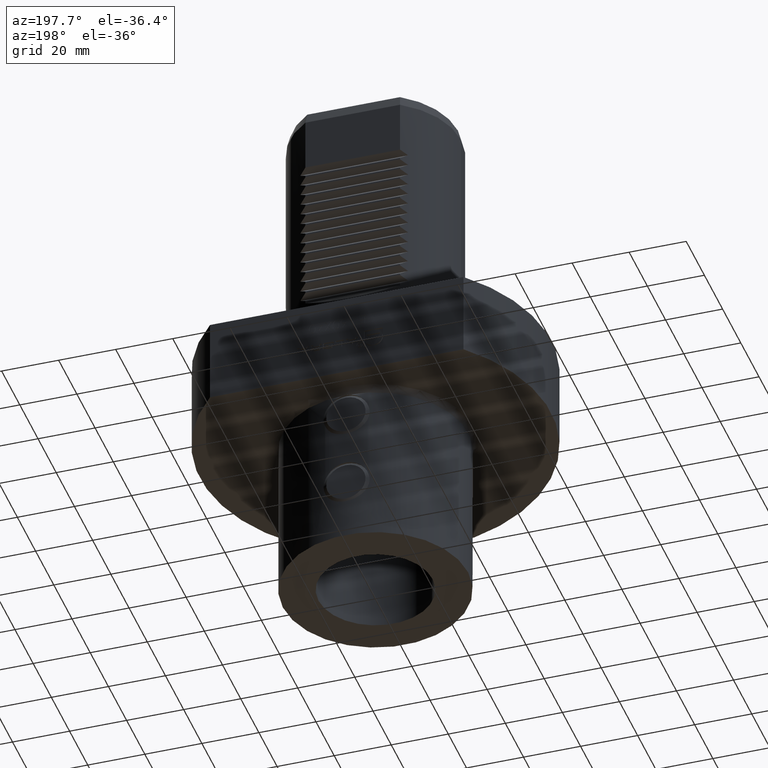
[diagram: clean part render]
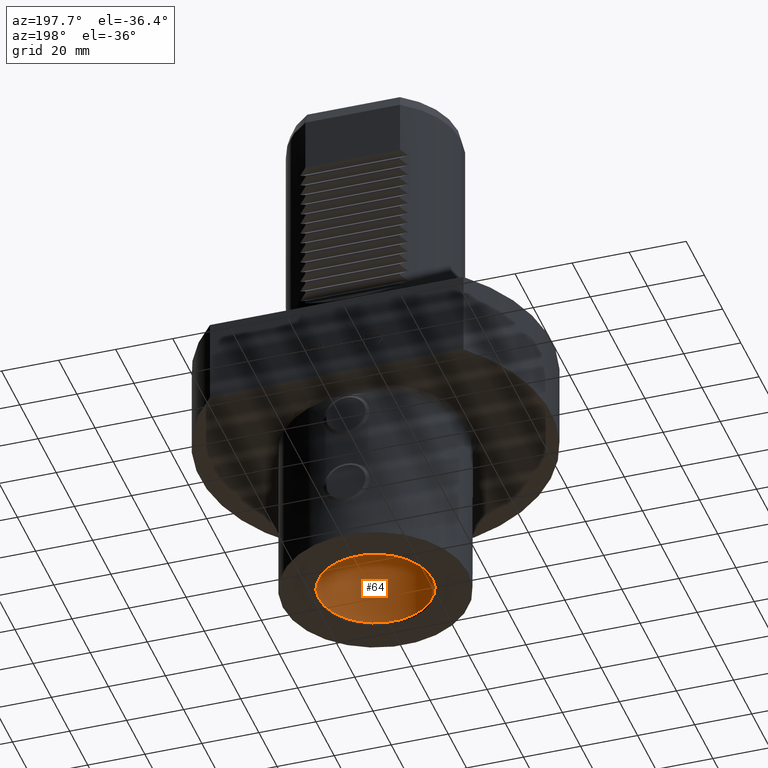
[diagram: same view with one face highlighted and labeled with its STEP entity id]
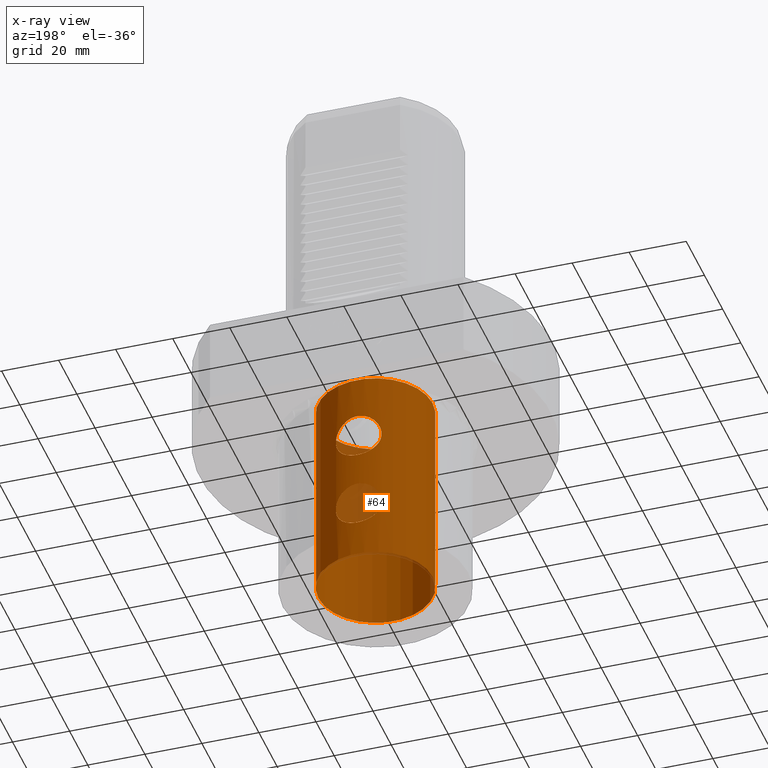
[diagram: x-ray of the same camera — body ghosted, the highlighted face saturated]
A machine part, auxiliary view. The second image highlights one B-rep face of the part: STEP entity #64.
The next image is the same camera in x-ray: the body ghosted, the highlighted face saturated — about 8% of this face is hidden behind the body in this view.
In plain terms, the highlighted cylindrical surface (bore or boss wall) has radius 20 mm, axis along (-0, -0, -1).
Its self-contained STEP definition (entity closure, byte-faithful):
#64 = ADVANCED_FACE ( 'Defeature completata1_2', ( #9222, #9570, #12292, #13567 ), #11707, .F. ) ;
#212 = CARTESIAN_POINT ( 'NONE',  ( -7.599342076785543298, 18.49999999999987210, -37.50000000000060396 ) ) ;
#214 = CARTESIAN_POINT ( 'NONE',  ( 7.966589335819543649, 18.34499655088329817, -40.84630643417819584 ) ) ;
#293 = B_SPLINE_CURVE_WITH_KNOTS ( 'NONE', 3,
 ( #13815, #13667, #5057, #3844, #5129, #13744, #6962, #3931, #4080, #1730, #1585, #3770, #9396, #10391, #2784, #7101, #8180, #593, #6044, #13527, #12382, #11369, #664, #2643, #11298, #12601, #11515, #5905, #9241, #4849, #10318, #4007, #11445, #4979, #13590, #9318, #10240, #8325 ),
 .UNSPECIFIED., .F., .F.,
 ( 4, 2, 2, 2, 2, 2, 2, 2, 2, 2, 2, 2, 2, 2, 2, 2, 2, 2, 4 ),
 ( 0.02781326423212629462, 0.02907499339717403361, 0.03033672256222176913, 0.03159845172726950813, 0.03286018089231724365, 0.03412191005736498611, 0.03538363922241272164, 0.03664536838746046410, 0.03727623296998433533, 0.03790709755250820656, 0.03916882671755594902, 0.03979969130007982026, 0.04043055588260369149, 0.04169228504765144783, 0.04295401421269920417, 0.04421574337774696051, 0.04547747254279471685, 0.04673920170784248013, 0.04800093087289023647 ),
 .UNSPECIFIED. ) ;
#376 = CARTESIAN_POINT ( 'NONE',  ( -0.8455287712535611844, 19.98645781266206001, -60.03368290066043755 ) ) ;
#402 = CARTESIAN_POINT ( 'NONE',  ( 8.000060904185183119, 18.33027619905803363, -68.42143082866641635 ) ) ;
#413 = CARTESIAN_POINT ( 'NONE',  ( 7.308660141340996397, 18.61786779280793880, -36.72012955318121641 ) ) ;
#473 = VERTEX_POINT ( 'NONE', #1531 ) ;
#496 = CARTESIAN_POINT ( 'NONE',  ( -7.830781149044367062, 18.40337564616790189, -69.69052502389649817 ) ) ;
#505 = CARTESIAN_POINT ( 'NONE',  ( 6.706515260206940887, 18.84380720317530233, -63.61891943540391736 ) ) ;
#553 = CARTESIAN_POINT ( 'NONE',  ( 6.927842858541079174, 18.76290242844807921, -35.97768020454572735 ) ) ;
#593 = CARTESIAN_POINT ( 'NONE',  ( 0.4234838864292458371, 19.99663719564863129, -75.99160422134200132 ) ) ;
#664 = CARTESIAN_POINT ( 'NONE',  ( -1.674693833856908176, 19.93083451569067321, -75.82561598714735851 ) ) ;
#683 = CARTESIAN_POINT ( 'NONE',  ( -19.99999999999996803, -2.081899558550495941E-15, -16.99999999999998934 ) ) ;
#687 = CARTESIAN_POINT ( 'NONE',  ( 2.885958797515987051, 19.79472282150234008, -47.47298082488358517 ) ) ;
#768 = EDGE_CURVE ( 'NONE', #9209, #5976, #293, .T. ) ;
#844 = CARTESIAN_POINT ( 'NONE',  ( 2.092651664156056412, 19.89423581778325811, -47.73272329794248492 ) ) ;
#891 = ORIENTED_EDGE ( 'NONE', *, *, #12389, .T. ) ;
#1071 = CARTESIAN_POINT ( 'NONE',  ( -0.8455287712535398681, 19.98645781266206356, -32.03368290066043045 ) ) ;
#1246 = CARTESIAN_POINT ( 'NONE',  ( -7.599342076785534417, 18.49999999999987566, -42.49999999999943867 ) ) ;
#1269 = CARTESIAN_POINT ( 'NONE',  ( 7.730668541688781481, 18.44605433888987278, -42.10080210778536980 ) ) ;
#1330 = CARTESIAN_POINT ( 'NONE',  ( -2.891342704421704379, 19.79399012458976159, -32.52894511531953725 ) ) ;
#1396 = CARTESIAN_POINT ( 'NONE',  ( 7.722701494737282957, 18.44892503843859899, -65.90127268743822242 ) ) ;
#1471 = CARTESIAN_POINT ( 'NONE',  ( 7.966609510225644009, 18.34498681044473045, -67.15433941143618313 ) ) ;
#1529 = CARTESIAN_POINT ( 'NONE',  ( 7.865267236606181100, 18.38855413940204286, -66.52247723312430594 ) ) ;
#1531 = CARTESIAN_POINT ( 'NONE',  ( -20.00000000000000000, -1.089935651241141083E-14, -88.99999999999994316 ) ) ;
#1554 = EDGE_LOOP ( 'NONE', ( #11096, #9255, #2681, #891 ) ) ;
#1585 = CARTESIAN_POINT ( 'NONE',  ( 4.021921454633568871, 19.59511957931782788, -74.92824598307532824 ) ) ;
#1673 = CARTESIAN_POINT ( 'NONE',  ( 6.922918001480995898, 18.76473540783335281, -44.03100833752522902 ) ) ;
#1705 = CARTESIAN_POINT ( 'NONE',  ( 2.088120733436144683, 19.89476197068369956, -60.26591327887771854 ) ) ;
#1730 = CARTESIAN_POINT ( 'NONE',  ( 4.375001982343807327, 19.51863969809767596, -74.71042554456484197 ) ) ;
#1766 = CARTESIAN_POINT ( 'NONE',  ( -7.599342076785557509, 18.49999999999986855, -65.50000000000062528 ) ) ;
#1817 = CARTESIAN_POINT ( 'NONE',  ( -1.674693833856901737, 19.93083451569066966, -47.82561598714732298 ) ) ;
#1864 = B_SPLINE_CURVE_WITH_KNOTS ( 'NONE', 3,
 ( #212, #8855, #13194, #4457, #13267, #8787, #3459, #7785, #1330, #9996, #10789, #1071, #9719, #4333, #2193, #6503, #10854, #10271, #13550, #13482, #5791, #5996, #5860, #6919, #10124, #11327, #553, #413, #4733, #8137 ),
 .UNSPECIFIED., .F., .F.,
 ( 4, 2, 2, 2, 2, 2, 2, 2, 2, 2, 2, 2, 2, 2, 4 ),
 ( 0.002537578306763581086, 0.005062881585775599880, 0.007588184864787618673, 0.008850836504293623300, 0.01011348814379962879, 0.01137613978330563255, 0.01263879142281163631, 0.01390144306231764007, 0.01516409470182364730, 0.01642674634132965106, 0.01768939798083565829, 0.01895204962034166205, 0.02021470125984766580, 0.02147735289935366956, 0.02274000453885967679 ),
 .UNSPECIFIED. ) ;
#1895 = CARTESIAN_POINT ( 'NONE',  ( 6.704784728978085973, 18.84442034812346733, -44.38368250909856982 ) ) ;
#1935 = ORIENTED_EDGE ( 'NONE', *, *, #7566, .T. ) ;
#2101 = CARTESIAN_POINT ( 'NONE',  ( -7.303888717421650689, 18.61973756010097247, -43.29029720516334834 ) ) ;
#2115 = CARTESIAN_POINT ( 'NONE',  ( -7.599342076785561950, 18.49999999999986855, -70.49999999999940314 ) ) ;
#2193 = CARTESIAN_POINT ( 'NONE',  ( 0.8469979077088417574, 19.98641802183229643, -32.03378055959601767 ) ) ;
#2557 = CARTESIAN_POINT ( 'NONE',  ( 4.374730231640882927, 19.51873331671741596, -61.28925587004397357 ) ) ;
#2558 = CARTESIAN_POINT ( 'NONE',  ( -7.549516567451070786E-15, -2.081899558550495941E-15, -17.00000000000000000 ) ) ;
#2582 = ORIENTED_EDGE ( 'NONE', *, *, #5178, .T. ) ;
#2616 = CARTESIAN_POINT ( 'NONE',  ( -7.731096981062929530, 18.44587834659998293, -70.09949976484013234 ) ) ;
#2624 = CARTESIAN_POINT ( 'NONE',  ( -0.4265789085652267332, 19.99991019521293012, -60.00022451199390616 ) ) ;
#2643 = CARTESIAN_POINT ( 'NONE',  ( -2.086450251871963868, 19.89194533662981001, -75.72603328765275421 ) ) ;
#2681 = ORIENTED_EDGE ( 'NONE', *, *, #8657, .T. ) ;
#2695 = CARTESIAN_POINT ( 'NONE',  ( 6.927842858541070292, 18.76290242844808276, -63.97768020454574867 ) ) ;
#2761 = CARTESIAN_POINT ( 'NONE',  ( 7.599342076785521094, 18.49999999999986144, -65.50000000000065370 ) ) ;
#2784 = CARTESIAN_POINT ( 'NONE',  ( 1.685782331100270426, 19.93321995885290576, -75.83179734090437307 ) ) ;
#2869 = CARTESIAN_POINT ( 'NONE',  ( 1.059335344956904290, 19.97302151968722939, -47.93237269303053694 ) ) ;
#2946 = CARTESIAN_POINT ( 'NONE',  ( -2.886404274292673211, 19.79469203081248807, -47.47290634939857057 ) ) ;
#3099 = CARTESIAN_POINT ( 'NONE',  ( -4.014486950288767453, 19.59656009714886693, -61.06773811472626790 ) ) ;
#3127 = DIRECTION ( 'NONE',  ( -1.000000000000000000, 0.000000000000000000, 5.204170427930431144E-16 ) ) ;
#3164 = AXIS2_PLACEMENT_3D ( 'NONE', #4585, #8913, #3949 ) ;
#3300 = CARTESIAN_POINT ( 'NONE',  ( -5.945785817345679902, 19.09819883398955298, -45.36838399453846193 ) ) ;
#3459 = CARTESIAN_POINT ( 'NONE',  ( -4.014486950288746137, 19.59656009714886693, -33.06773811472625368 ) ) ;
#3477 = CARTESIAN_POINT ( 'NONE',  ( -7.599342076785543298, 18.49999999999987210, -37.50000000000060396 ) ) ;
#3611 = AXIS2_PLACEMENT_3D ( 'NONE', #6671, #4220, #3127 ) ;
#3683 = CARTESIAN_POINT ( 'NONE',  ( -7.599342076785561950, 18.49999999999986855, -70.49999999999940314 ) ) ;
#3770 = CARTESIAN_POINT ( 'NONE',  ( 3.274248538352266813, 19.73382527601035008, -75.31134331695206185 ) ) ;
#3844 = CARTESIAN_POINT ( 'NONE',  ( 6.922918001481018990, 18.76473540783333505, -72.03100833752517929 ) ) ;
#3869 = CARTESIAN_POINT ( 'NONE',  ( 4.021921454633555548, 19.59511957931784210, -46.92824598307536377 ) ) ;
#3931 = CARTESIAN_POINT ( 'NONE',  ( 5.356982093410993073, 19.27167126550976661, -73.95621346475344637 ) ) ;
#3949 = DIRECTION ( 'NONE',  ( -1.000000000000000000, 0.000000000000000000, 6.938893903907242183E-16 ) ) ;
#3953 = CARTESIAN_POINT ( 'NONE',  ( 0.2123305736478496020, 19.99998249108569226, -47.99995622771355386 ) ) ;
#4007 = CARTESIAN_POINT ( 'NONE',  ( -5.945785817345715429, 19.09819883398953166, -73.36838399453841930 ) ) ;
#4080 = CARTESIAN_POINT ( 'NONE',  ( 5.042536419485069921, 19.35693065720476014, -74.22440999556000918 ) ) ;
#4103 = CARTESIAN_POINT ( 'NONE',  ( -0.4196941437772326311, 20.00003481223578561, -48.00008703059115334 ) ) ;
#4117 = CARTESIAN_POINT ( 'NONE',  ( -7.334721509858334265, 18.60869957884488812, -64.69562311654723885 ) ) ;
#4193 = CARTESIAN_POINT ( 'NONE',  ( -3.275349804671871645, 19.73355915115775971, -60.68942929881026771 ) ) ;
#4220 = DIRECTION ( 'NONE',  ( -4.440892098500630106E-16, -1.224646799147350002E-16, -1.000000000000000000 ) ) ;
#4333 = CARTESIAN_POINT ( 'NONE',  ( 0.4181160040069986650, 20.00008890952756957, -31.99977772615476823 ) ) ;
#4440 = CARTESIAN_POINT ( 'NONE',  ( -6.218883206030718647, 19.01030891540557732, -45.04941033483513024 ) ) ;
#4457 = CARTESIAN_POINT ( 'NONE',  ( -5.967959224538002871, 19.09593762247448723, -34.60719119009215916 ) ) ;
#4516 = CARTESIAN_POINT ( 'NONE',  ( 7.966589335819536544, 18.34499655088329462, -68.84630643417818874 ) ) ;
#4585 = CARTESIAN_POINT ( 'NONE',  ( -3.952393967665559177E-14, -1.089935651241141083E-14, -88.99999999999995737 ) ) ;
#4723 = CARTESIAN_POINT ( 'NONE',  ( 7.730668541688789475, 18.44605433888986568, -70.10080210778531296 ) ) ;
#4733 = CARTESIAN_POINT ( 'NONE',  ( 7.468975457925446371, 18.55355138011401550, -37.10371978715585328 ) ) ;
#4816 = EDGE_LOOP ( 'NONE', ( #6148 ) ) ;
#4849 = CARTESIAN_POINT ( 'NONE',  ( -5.045026221280084933, 19.35630080672942910, -74.22248122563370032 ) ) ;
#4979 = CARTESIAN_POINT ( 'NONE',  ( -6.706428540791878667, 18.84383638266506722, -72.38119496108578232 ) ) ;
#5003 = CARTESIAN_POINT ( 'NONE',  ( 0.8467687514574110397, 19.98318844474071909, -47.95789289411408873 ) ) ;
#5057 = CARTESIAN_POINT ( 'NONE',  ( 7.306388735343970708, 18.61877472416654200, -71.28519489839888479 ) ) ;
#5074 = CARTESIAN_POINT ( 'NONE',  ( 7.599342076785524647, 18.49999999999986855, -42.49999999999939604 ) ) ;
#5129 = CARTESIAN_POINT ( 'NONE',  ( 6.704784728978112618, 18.84442034812345668, -72.38368250909854851 ) ) ;
#5150 = CARTESIAN_POINT ( 'NONE',  ( -4.375434240158891264, 19.51856156851839330, -46.71022632903038385 ) ) ;
#5178 = EDGE_CURVE ( 'NONE', #5976, #9140, #5578, .T. ) ;
#5377 = B_SPLINE_CURVE_WITH_KNOTS ( 'NONE', 3,
 ( #9502, #4117, #13625, #8427, #12779, #13916, #3099, #4193, #12366, #5954, #9221, #376, #2624, #9085, #5749, #6939, #1705, #11210, #11139, #11422, #2557, #13566, #12493, #9150, #9295, #505, #2695, #12291, #13366, #2761 ),
 .UNSPECIFIED., .F., .F.,
 ( 4, 2, 2, 2, 2, 2, 2, 2, 2, 2, 2, 2, 2, 2, 4 ),
 ( 0.002537578306763566775, 0.005062881585775586002, 0.007588184864787605663, 0.008850836504293607687, 0.01011348814379960971, 0.01137613978330561347, 0.01263879142281161549, 0.01390144306231761752, 0.01516409470182362128, 0.01642674634132962330, 0.01768939798083562706, 0.01895204962034163082, 0.02021470125984764846, 0.02147735289935366262, 0.02274000453885968026 ),
 .UNSPECIFIED. ) ;
#5578 = B_SPLINE_CURVE_WITH_KNOTS ( 'NONE', 3,
 ( #3683, #2616, #496, #13637, #8224, #7136, #10214, #1766 ),
 .UNSPECIFIED., .F., .F.,
 ( 4, 2, 2, 4 ),
 ( 0.04800093087289023647, 0.04926822604499761504, 0.05053552121710499362, 0.05307011156131978546 ),
 .UNSPECIFIED. ) ;
#5654 = CARTESIAN_POINT ( 'NONE',  ( 7.999938929188824766, 18.33032943331011566, -39.57626005230559230 ) ) ;
#5749 = CARTESIAN_POINT ( 'NONE',  ( 0.8469979077088259922, 19.98641802183230354, -60.03378055959605319 ) ) ;
#5780 = CARTESIAN_POINT ( 'NONE',  ( 7.599342076785526423, 18.49999999999985789, -70.49999999999934630 ) ) ;
#5791 = CARTESIAN_POINT ( 'NONE',  ( 4.374730231640894473, 19.51873331671741951, -33.28925587004395226 ) ) ;
#5810 = CARTESIAN_POINT ( 'NONE',  ( -7.731096981062901996, 18.44587834659999714, -42.09949976484019629 ) ) ;
#5860 = CARTESIAN_POINT ( 'NONE',  ( 5.365449452307111677, 19.26927681669486603, -34.05161526788919701 ) ) ;
#5905 = CARTESIAN_POINT ( 'NONE',  ( -4.016481734197166809, 19.59620724890216437, -74.93129778653995743 ) ) ;
#5954 = CARTESIAN_POINT ( 'NONE',  ( -2.092859542366563907, 19.89426667717849284, -60.26718274752043669 ) ) ;
#5976 = VERTEX_POINT ( 'NONE', #2115 ) ;
#5992 = CARTESIAN_POINT ( 'NONE',  ( 5.042536419485043275, 19.35693065720477790, -46.22440999556005181 ) ) ;
#5996 = CARTESIAN_POINT ( 'NONE',  ( 5.045855789427189819, 19.35609863172511780, -33.77812803654104812 ) ) ;
#6044 = CARTESIAN_POINT ( 'NONE',  ( 0.2123305736478511840, 19.99998249108568160, -75.99995622771353965 ) ) ;
#6136 = CARTESIAN_POINT ( 'NONE',  ( -2.086450251871953210, 19.89194533662980291, -47.72603328765269737 ) ) ;
#6147 = VERTEX_POINT ( 'NONE', #12031 ) ;
#6148 = ORIENTED_EDGE ( 'NONE', *, *, #10216, .F. ) ;
#6215 = CARTESIAN_POINT ( 'NONE',  ( -4.016481734197130393, 19.59620724890218213, -46.93129778653997164 ) ) ;
#6330 = CIRCLE ( 'NONE', #3611, 19.99999999999996092 ) ;
#6343 = CARTESIAN_POINT ( 'NONE',  ( -7.468165844899158579, 18.55388394910518457, -42.89874122337880635 ) ) ;
#6503 = CARTESIAN_POINT ( 'NONE',  ( 1.680340392772090796, 19.93365914636609659, -32.16708778341337904 ) ) ;
#6513 = B_SPLINE_CURVE_WITH_KNOTS ( 'NONE', 3,
 ( #5074, #11390, #11616, #1673, #1895, #13611, #11462, #8342, #5992, #9486, #3869, #12542, #687, #844, #8275, #2869, #5003, #9418, #3953, #4103, #7187, #11533, #1817, #6136, #13762, #2946, #7262, #6215, #5150, #13834, #8414, #3300, #4440, #6623, #9690, #2101, #6343, #1246 ),
 .UNSPECIFIED., .F., .F.,
 ( 4, 2, 2, 2, 2, 2, 2, 2, 2, 2, 2, 2, 2, 2, 2, 2, 2, 2, 4 ),
 ( 0.02781326423212636401, 0.02907499339717409953, 0.03033672256222183158, 0.03159845172726956364, 0.03286018089231729916, 0.03412191005736503469, 0.03538363922241277021, 0.03664536838746050573, 0.03727623296998437002, 0.03790709755250824126, 0.03916882671755597678, 0.03979969130007984801, 0.04043055588260371924, 0.04169228504765146170, 0.04295401421269920417, 0.04421574337774694663, 0.04547747254279468215, 0.04673920170784242462, 0.04800093087289016708 ),
 .UNSPECIFIED. ) ;
#6623 = CARTESIAN_POINT ( 'NONE',  ( -6.706428540791848469, 18.84383638266507788, -44.38119496108573969 ) ) ;
#6671 = CARTESIAN_POINT ( 'NONE',  ( -7.549516567451070786E-15, -2.081899558550495941E-15, -17.00000000000000000 ) ) ;
#6872 = CARTESIAN_POINT ( 'NONE',  ( 7.599342076785524647, 18.49999999999986855, -42.49999999999939604 ) ) ;
#6919 = CARTESIAN_POINT ( 'NONE',  ( 5.950693026823899778, 19.09665754429781259, -34.63711073702047827 ) ) ;
#6935 = CARTESIAN_POINT ( 'NONE',  ( -7.830781149044343081, 18.40337564616790900, -41.69052502389653370 ) ) ;
#6939 = CARTESIAN_POINT ( 'NONE',  ( 1.680340392772073699, 19.93365914636609659, -60.16708778341340036 ) ) ;
#6962 = CARTESIAN_POINT ( 'NONE',  ( 5.946958135403113133, 19.09786007516977335, -73.36725487773766474 ) ) ;
#6976 = VERTEX_POINT ( 'NONE', #683 ) ;
#7101 = CARTESIAN_POINT ( 'NONE',  ( 1.059335344956902292, 19.97302151968722228, -75.93237269303051562 ) ) ;
#7136 = CARTESIAN_POINT ( 'NONE',  ( -7.999674147282910042, 18.33044499359606050, -67.13919841108939579 ) ) ;
#7187 = CARTESIAN_POINT ( 'NONE',  ( -0.8391381287063538474, 19.98676729564684607, -47.96709397194958058 ) ) ;
#7262 = CARTESIAN_POINT ( 'NONE',  ( -3.271629091928939914, 19.73423186110646199, -47.31241804136477924 ) ) ;
#7566 = EDGE_CURVE ( 'NONE', #6147, #9209, #7726, .T. ) ;
#7726 = B_SPLINE_CURVE_WITH_KNOTS ( 'NONE', 3,
 ( #13254, #13323, #1396, #12331, #1529, #1471, #7849, #402, #4516, #13185, #4723, #5780 ),
 .UNSPECIFIED., .F., .F.,
 ( 4, 2, 2, 2, 2, 4 ),
 ( 0.02274000453885968026, 0.02337416200051799231, 0.02400831946217630436, 0.02527663438549296662, 0.02654494930880963235, 0.02781326423212629462 ),
 .UNSPECIFIED. ) ;
#7730 = CARTESIAN_POINT ( 'NONE',  ( -8.000162063539557167, 18.33023204950201190, -40.42585022795221050 ) ) ;
#7747 = B_SPLINE_CURVE_WITH_KNOTS ( 'NONE', 3,
 ( #12063, #8727, #11925, #13066, #10986, #8856, #5654, #13270, #214, #10066, #1269, #13196 ),
 .UNSPECIFIED., .F., .F.,
 ( 4, 2, 2, 2, 2, 4 ),
 ( 0.02274000453885967679, 0.02337416200051801313, 0.02400831946217634599, 0.02527663438549301866, 0.02654494930880969134, 0.02781326423212636401 ),
 .UNSPECIFIED. ) ;
#7785 = CARTESIAN_POINT ( 'NONE',  ( -3.275349804671852549, 19.73355915115776327, -32.68942929881027482 ) ) ;
#7849 = CARTESIAN_POINT ( 'NONE',  ( 7.999938929188808778, 18.33032943331010856, -67.57626005230554256 ) ) ;
#8083 = CARTESIAN_POINT ( 'NONE',  ( 7.599342076785524647, 18.49999999999986855, -37.50000000000064659 ) ) ;
#8113 = EDGE_CURVE ( 'NONE', #9140, #6147, #5377, .T. ) ;
#8137 = CARTESIAN_POINT ( 'NONE',  ( 7.599342076785524647, 18.49999999999986855, -37.50000000000064659 ) ) ;
#8180 = CARTESIAN_POINT ( 'NONE',  ( 0.8467687514574276930, 19.98318844474071199, -75.95789289411409584 ) ) ;
#8224 = CARTESIAN_POINT ( 'NONE',  ( -8.000162063539576707, 18.33023204950200835, -68.42585022795219629 ) ) ;
#8275 = CARTESIAN_POINT ( 'NONE',  ( 1.685782331100267761, 19.93321995885290576, -47.83179734090432333 ) ) ;
#8320 = AXIS2_PLACEMENT_3D ( 'NONE', #2558, #9151, #11274 ) ;
#8325 = CARTESIAN_POINT ( 'NONE',  ( -7.599342076785561950, 18.49999999999986855, -70.49999999999940314 ) ) ;
#8342 = CARTESIAN_POINT ( 'NONE',  ( 5.356982093410966428, 19.27167126550978082, -45.95621346475344637 ) ) ;
#8414 = CARTESIAN_POINT ( 'NONE',  ( -5.358949751733883993, 19.27109818476207082, -45.95429032353620613 ) ) ;
#8427 = CARTESIAN_POINT ( 'NONE',  ( -5.967959224538025076, 19.09593762247448723, -62.60719119009217337 ) ) ;
#8657 = EDGE_CURVE ( 'NONE', #9669, #10314, #6513, .T. ) ;
#8727 = CARTESIAN_POINT ( 'NONE',  ( 7.664817748391702601, 18.47310421479756926, -37.69902881049771537 ) ) ;
#8787 = CARTESIAN_POINT ( 'NONE',  ( -4.371904481315660895, 19.51939782135846357, -33.28728553452850747 ) ) ;
#8855 = CARTESIAN_POINT ( 'NONE',  ( -7.334721509858315613, 18.60869957884489168, -36.69562311654723175 ) ) ;
#8856 = CARTESIAN_POINT ( 'NONE',  ( 7.966609510225658219, 18.34498681044472690, -39.15433941143619023 ) ) ;
#8858 = CARTESIAN_POINT ( 'NONE',  ( 7.599342076785526423, 18.49999999999985789, -70.49999999999934630 ) ) ;
#8875 = CARTESIAN_POINT ( 'NONE',  ( -7.864935813343316262, 18.39090066715910865, -38.30733506302247093 ) ) ;
#8913 = DIRECTION ( 'NONE',  ( 4.440892098500630106E-16, 1.224646799147350002E-16, 1.000000000000000000 ) ) ;
#9085 = CARTESIAN_POINT ( 'NONE',  ( 0.4181160040069782924, 20.00008890952757312, -59.99977772615478955 ) ) ;
#9140 = VERTEX_POINT ( 'NONE', #13002 ) ;
#9150 = CARTESIAN_POINT ( 'NONE',  ( 5.950693026823882903, 19.09665754429781259, -62.63711073702050669 ) ) ;
#9151 = DIRECTION ( 'NONE',  ( -4.440892098500630106E-16, -1.224646799147350002E-16, -1.000000000000000000 ) ) ;
#9209 = VERTEX_POINT ( 'NONE', #8858 ) ;
#9221 = CARTESIAN_POINT ( 'NONE',  ( -1.676733392801032396, 19.93394040148118407, -60.16637426476645345 ) ) ;
#9222 = FACE_OUTER_BOUND ( 'NONE', #13699, .T. ) ;
#9241 = CARTESIAN_POINT ( 'NONE',  ( -4.375434240158917909, 19.51856156851838620, -74.71022632903037675 ) ) ;
#9255 = ORIENTED_EDGE ( 'NONE', *, *, #11491, .T. ) ;
#9295 = CARTESIAN_POINT ( 'NONE',  ( 6.218736587948045624, 19.01035854726433527, -62.95039317386130762 ) ) ;
#9318 = CARTESIAN_POINT ( 'NONE',  ( -7.303888717421684440, 18.61973756010096892, -71.29029720516338386 ) ) ;
#9396 = CARTESIAN_POINT ( 'NONE',  ( 2.885958797516011476, 19.79472282150232587, -75.47298082488357807 ) ) ;
#9418 = CARTESIAN_POINT ( 'NONE',  ( 0.4234838864292324034, 19.99663719564863484, -47.99160422134198711 ) ) ;
#9486 = CARTESIAN_POINT ( 'NONE',  ( 4.375001982343782458, 19.51863969809769372, -46.71042554456488460 ) ) ;
#9502 = CARTESIAN_POINT ( 'NONE',  ( -7.599342076785557509, 18.49999999999986855, -65.50000000000062528 ) ) ;
#9554 = B_SPLINE_CURVE_WITH_KNOTS ( 'NONE', 3,
 ( #13288, #5810, #6935, #12080, #7730, #10146, #8875, #3477 ),
 .UNSPECIFIED., .F., .F.,
 ( 4, 2, 2, 4 ),
 ( 0.04800093087289016708, 0.04926822604499757341, 0.05053552121710497280, 0.05307011156131978546 ),
 .UNSPECIFIED. ) ;
#9570 = FACE_BOUND ( 'NONE', #1554, .T. ) ;
#9651 = EDGE_LOOP ( 'NONE', ( #9965, #1935, #13605, #2582 ) ) ;
#9669 = VERTEX_POINT ( 'NONE', #6872 ) ;
#9690 = CARTESIAN_POINT ( 'NONE',  ( -6.923481252346710413, 18.76450970720838995, -44.02967162969748927 ) ) ;
#9719 = CARTESIAN_POINT ( 'NONE',  ( -0.4265789085652060275, 19.99991019521293012, -32.00022451199389906 ) ) ;
#9965 = ORIENTED_EDGE ( 'NONE', *, *, #8113, .T. ) ;
#9996 = CARTESIAN_POINT ( 'NONE',  ( -2.092859542366548364, 19.89426667717850350, -32.26718274752042248 ) ) ;
#10066 = CARTESIAN_POINT ( 'NONE',  ( 7.831017369560570707, 18.40327718247905864, -41.69054641573833209 ) ) ;
#10124 = CARTESIAN_POINT ( 'NONE',  ( 6.218736587948059835, 19.01035854726433882, -34.95039317386128630 ) ) ;
#10146 = CARTESIAN_POINT ( 'NONE',  ( -7.999674147282899384, 18.33044499359606405, -39.13919841108940290 ) ) ;
#10214 = CARTESIAN_POINT ( 'NONE',  ( -7.864935813343328697, 18.39090066715909799, -66.30733506302247804 ) ) ;
#10216 = EDGE_CURVE ( 'NONE', #473, #473, #12933, .T. ) ;
#10240 = CARTESIAN_POINT ( 'NONE',  ( -7.468165844899195882, 18.55388394910518102, -70.89874122337882056 ) ) ;
#10271 = CARTESIAN_POINT ( 'NONE',  ( 2.886367921032313433, 19.79471349355690180, -32.52703366582706224 ) ) ;
#10314 = VERTEX_POINT ( 'NONE', #11459 ) ;
#10318 = CARTESIAN_POINT ( 'NONE',  ( -5.358949751733922184, 19.27109818476205660, -73.95429032353618481 ) ) ;
#10382 = EDGE_CURVE ( 'NONE', #6976, #6976, #6330, .T. ) ;
#10391 = CARTESIAN_POINT ( 'NONE',  ( 2.092651664156077729, 19.89423581778324746, -75.73272329794248492 ) ) ;
#10789 = CARTESIAN_POINT ( 'NONE',  ( -1.676733392801009970, 19.93394040148118407, -32.16637426476643924 ) ) ;
#10854 = CARTESIAN_POINT ( 'NONE',  ( 2.088120733436157561, 19.89476197068369601, -32.26591327887769012 ) ) ;
#10913 = EDGE_CURVE ( 'NONE', #11902, #12677, #1864, .T. ) ;
#10986 = CARTESIAN_POINT ( 'NONE',  ( 7.865267236606193535, 18.38855413940203221, -38.52247723312429173 ) ) ;
#11096 = ORIENTED_EDGE ( 'NONE', *, *, #10913, .T. ) ;
#11139 = CARTESIAN_POINT ( 'NONE',  ( 3.278972410394930037, 19.73299193273795282, -60.69093210087987700 ) ) ;
#11172 = CARTESIAN_POINT ( 'NONE',  ( -7.599342076785543298, 18.49999999999987210, -37.50000000000060396 ) ) ;
#11210 = CARTESIAN_POINT ( 'NONE',  ( 2.886367921032301886, 19.79471349355690180, -60.52703366582709066 ) ) ;
#11274 = DIRECTION ( 'NONE',  ( -1.000000000000000000, 0.000000000000000000, 5.204170427930431144E-16 ) ) ;
#11298 = CARTESIAN_POINT ( 'NONE',  ( -2.288906918485865027, 19.86960481931757272, -75.66843007752511596 ) ) ;
#11327 = CARTESIAN_POINT ( 'NONE',  ( 6.706515260206947993, 18.84380720317529878, -35.61891943540386762 ) ) ;
#11369 = CARTESIAN_POINT ( 'NONE',  ( -1.465428543670582284, 19.94733751947214273, -75.86747761182878946 ) ) ;
#11390 = CARTESIAN_POINT ( 'NONE',  ( 7.468697527971282391, 18.55366554685969049, -42.89712504676216298 ) ) ;
#11422 = CARTESIAN_POINT ( 'NONE',  ( 4.021614795606996751, 19.59513319988887048, -61.07174278351082108 ) ) ;
#11445 = CARTESIAN_POINT ( 'NONE',  ( -6.218883206030754174, 19.01030891540556311, -73.04941033483511603 ) ) ;
#11459 = CARTESIAN_POINT ( 'NONE',  ( -7.599342076785534417, 18.49999999999987566, -42.49999999999943867 ) ) ;
#11462 = CARTESIAN_POINT ( 'NONE',  ( 5.946958135403082935, 19.09786007516978046, -45.36725487773770027 ) ) ;
#11491 = EDGE_CURVE ( 'NONE', #12677, #9669, #7747, .T. ) ;
#11515 = CARTESIAN_POINT ( 'NONE',  ( -3.271629091928975441, 19.73423186110645489, -75.31241804136476503 ) ) ;
#11533 = CARTESIAN_POINT ( 'NONE',  ( -1.465428543670563855, 19.94733751947214628, -47.86747761182876104 ) ) ;
#11616 = CARTESIAN_POINT ( 'NONE',  ( 7.306388735343952945, 18.61877472416655266, -43.28519489839894163 ) ) ;
#11707 = CYLINDRICAL_SURFACE ( 'NONE', #8320, 19.99999999999996092 ) ;
#11902 = VERTEX_POINT ( 'NONE', #11172 ) ;
#11925 = CARTESIAN_POINT ( 'NONE',  ( 7.722701494737293615, 18.44892503843860254, -37.90127268743821531 ) ) ;
#12031 = CARTESIAN_POINT ( 'NONE',  ( 7.599342076785521094, 18.49999999999986144, -65.50000000000065370 ) ) ;
#12063 = CARTESIAN_POINT ( 'NONE',  ( 7.599342076785524647, 18.49999999999986855, -37.50000000000064659 ) ) ;
#12080 = CARTESIAN_POINT ( 'NONE',  ( -7.965411745855356607, 18.34550583377803434, -40.85511635444431278 ) ) ;
#12291 = CARTESIAN_POINT ( 'NONE',  ( 7.308660141340986627, 18.61786779280793880, -64.72012955318123772 ) ) ;
#12292 = FACE_BOUND ( 'NONE', #9651, .T. ) ;
#12331 = CARTESIAN_POINT ( 'NONE',  ( 7.822848612699911719, 18.40668337950981126, -66.31245317336396283 ) ) ;
#12366 = CARTESIAN_POINT ( 'NONE',  ( -2.891342704421722587, 19.79399012458975804, -60.52894511531955857 ) ) ;
#12382 = CARTESIAN_POINT ( 'NONE',  ( -0.8391381287063669481, 19.98676729564684251, -75.96709397194963742 ) ) ;
#12389 = EDGE_CURVE ( 'NONE', #10314, #11902, #9554, .T. ) ;
#12493 = CARTESIAN_POINT ( 'NONE',  ( 5.365449452307093914, 19.26927681669486958, -62.05161526788921122 ) ) ;
#12542 = CARTESIAN_POINT ( 'NONE',  ( 3.274248538352256599, 19.73382527601036429, -47.31134331695208317 ) ) ;
#12601 = CARTESIAN_POINT ( 'NONE',  ( -2.886404274292688310, 19.79469203081248097, -75.47290634939855636 ) ) ;
#12677 = VERTEX_POINT ( 'NONE', #8083 ) ;
#12779 = CARTESIAN_POINT ( 'NONE',  ( -5.383766529628805309, 19.27425273164331188, -62.02409880359110161 ) ) ;
#12933 = CIRCLE ( 'NONE', #3164, 19.99999999999996092 ) ;
#13002 = CARTESIAN_POINT ( 'NONE',  ( -7.599342076785557509, 18.49999999999986855, -65.50000000000062528 ) ) ;
#13066 = CARTESIAN_POINT ( 'NONE',  ( 7.822848612699924153, 18.40668337950981481, -38.31245317336397704 ) ) ;
#13185 = CARTESIAN_POINT ( 'NONE',  ( 7.831017369560568930, 18.40327718247905864, -69.69054641573832498 ) ) ;
#13194 = CARTESIAN_POINT ( 'NONE',  ( -6.953962672508455789, 18.75936497156938287, -35.95755923787040587 ) ) ;
#13196 = CARTESIAN_POINT ( 'NONE',  ( 7.599342076785524647, 18.49999999999986855, -42.49999999999939604 ) ) ;
#13254 = CARTESIAN_POINT ( 'NONE',  ( 7.599342076785521094, 18.49999999999986144, -65.50000000000065370 ) ) ;
#13267 = CARTESIAN_POINT ( 'NONE',  ( -5.383766529628781328, 19.27425273164331543, -34.02409880359109451 ) ) ;
#13270 = CARTESIAN_POINT ( 'NONE',  ( 8.000060904185192001, 18.33027619905803718, -40.42143082866645898 ) ) ;
#13288 = CARTESIAN_POINT ( 'NONE',  ( -7.599342076785534417, 18.49999999999987566, -42.49999999999943867 ) ) ;
#13323 = CARTESIAN_POINT ( 'NONE',  ( 7.664817748391691055, 18.47310421479755504, -65.69902881049773669 ) ) ;
#13366 = CARTESIAN_POINT ( 'NONE',  ( 7.468975457925440153, 18.55355138011400840, -65.10371978715589592 ) ) ;
#13482 = CARTESIAN_POINT ( 'NONE',  ( 4.021614795607009185, 19.59513319988887403, -33.07174278351079266 ) ) ;
#13527 = CARTESIAN_POINT ( 'NONE',  ( -0.4196941437772360173, 20.00003481223578206, -76.00008703059114623 ) ) ;
#13550 = CARTESIAN_POINT ( 'NONE',  ( 3.278972410394942916, 19.73299193273794927, -32.69093210087984858 ) ) ;
#13566 = CARTESIAN_POINT ( 'NONE',  ( 5.045855789427179161, 19.35609863172512135, -61.77812803654105522 ) ) ;
#13567 = FACE_OUTER_BOUND ( 'NONE', #4816, .T. ) ;
#13583 = ORIENTED_EDGE ( 'NONE', *, *, #10382, .F. ) ;
#13590 = CARTESIAN_POINT ( 'NONE',  ( -6.923481252346741499, 18.76450970720838285, -72.02967162969746084 ) ) ;
#13605 = ORIENTED_EDGE ( 'NONE', *, *, #768, .T. ) ;
#13611 = CARTESIAN_POINT ( 'NONE',  ( 6.217360952833016263, 19.01080585616756480, -45.05126057382725691 ) ) ;
#13625 = CARTESIAN_POINT ( 'NONE',  ( -6.953962672508477993, 18.75936497156937932, -63.95755923787042718 ) ) ;
#13637 = CARTESIAN_POINT ( 'NONE',  ( -7.965411745855370818, 18.34550583377802724, -68.85511635444429146 ) ) ;
#13667 = CARTESIAN_POINT ( 'NONE',  ( 7.468697527971301930, 18.55366554685967273, -70.89712504676208482 ) ) ;
#13699 = EDGE_LOOP ( 'NONE', ( #13583 ) ) ;
#13744 = CARTESIAN_POINT ( 'NONE',  ( 6.217360952833041132, 19.01080585616755414, -73.05126057382724980 ) ) ;
#13762 = CARTESIAN_POINT ( 'NONE',  ( -2.288906918485851261, 19.86960481931756206, -47.66843007752510175 ) ) ;
#13815 = CARTESIAN_POINT ( 'NONE',  ( 7.599342076785526423, 18.49999999999985789, -70.49999999999934630 ) ) ;
#13834 = CARTESIAN_POINT ( 'NONE',  ( -5.045026221280057399, 19.35630080672942910, -46.22248122563369321 ) ) ;
#13916 = CARTESIAN_POINT ( 'NONE',  ( -4.371904481315684876, 19.51939782135846002, -61.28728553452852168 ) ) ;